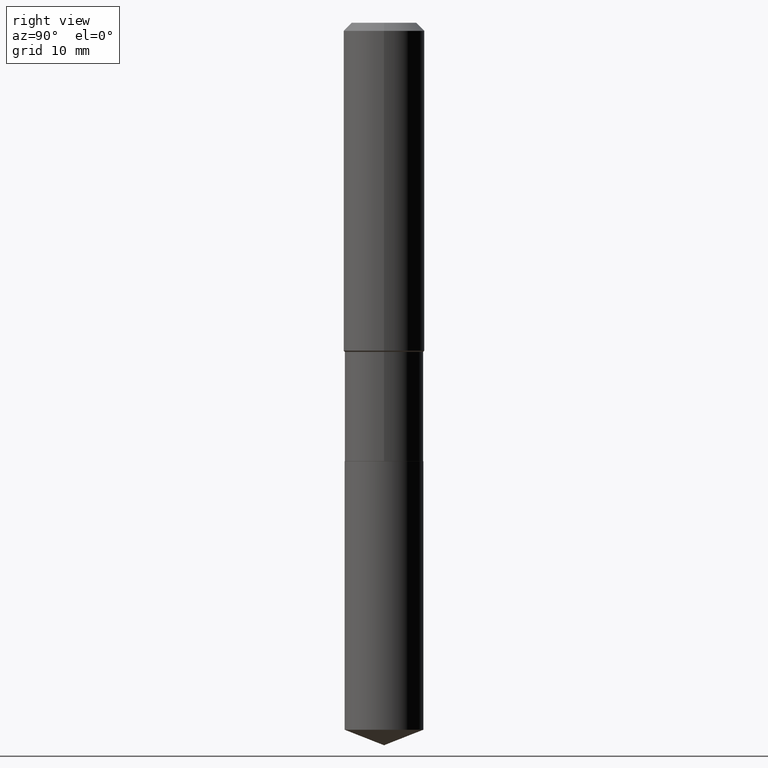
[diagram: clean part render]
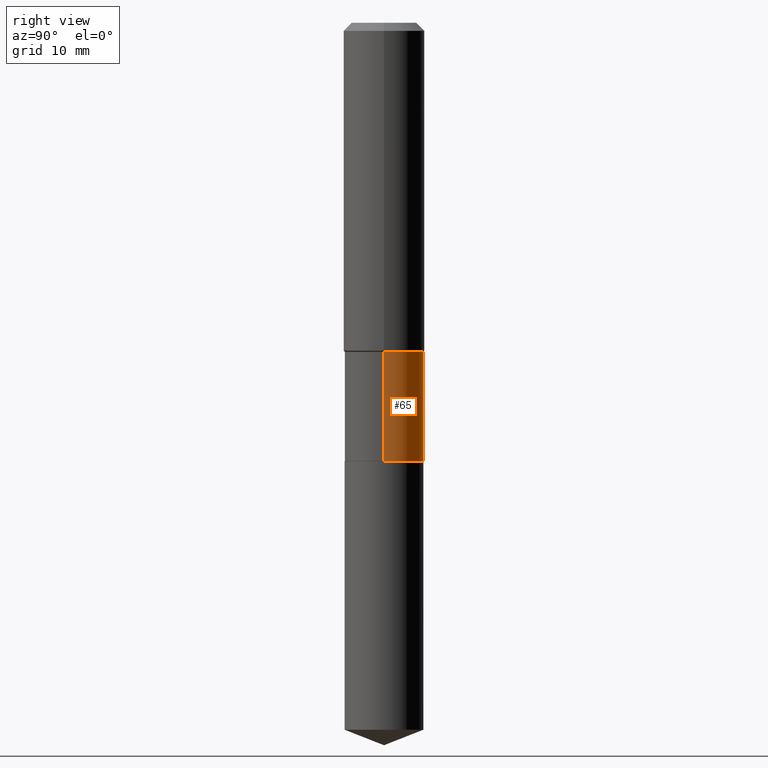
[diagram: same view with one face highlighted and labeled with its STEP entity id]
A machine part, right view. The second image highlights one B-rep face of the part: STEP entity #65.
In plain terms, the highlighted cylindrical surface (partial cylindrical patch) has radius 4.8501 mm, axis along (-0, 0, 1).
Its self-contained STEP definition (entity closure, byte-faithful):
#24 = CIRCLE ( 'NONE', #302, 0.1909499999999999531 ) ;
#36 = VERTEX_POINT ( 'NONE', #163 ) ;
#39 = CIRCLE ( 'NONE', #215, 0.1909500000000000086 ) ;
#42 = CARTESIAN_POINT ( 'NONE',  ( 5.197599400665889285E-29, -7.420794437577220826E-15, -2.125399999999999956 ) ) ;
#47 = EDGE_LOOP ( 'NONE', ( #441, #444, #278, #288 ) ) ;
#65 = ADVANCED_FACE ( 'NONE', ( #331 ), #325, .T. ) ;
#131 = DIRECTION ( 'NONE',  ( -2.445468806185136597E-29, 3.491481338843145583E-15, 1.000000000000000000 ) ) ;
#133 = DIRECTION ( 'NONE',  ( 1.000000000000000000, -6.982962677686266711E-15, 4.876176775795935232E-29 ) ) ;
#143 = CARTESIAN_POINT ( 'NONE',  ( -0.1909499999999999531, -5.140167121385413090E-15, -1.596199999999999841 ) ) ;
#149 = VECTOR ( 'NONE', #371, 39.37007874015748143 ) ;
#153 = DIRECTION ( 'NONE',  ( 1.000000000000000000, -6.982962677686265133E-15, 0.000000000000000000 ) ) ;
#163 = CARTESIAN_POINT ( 'NONE',  ( -0.1909500000000000086, -5.140167121385412301E-15, -2.125399999999999956 ) ) ;
#170 = VERTEX_POINT ( 'NONE', #370 ) ;
#181 = CARTESIAN_POINT ( 'NONE',  ( 0.1909499999999999809, -1.333396723304192546E-15, 9.311059553382337160E-30 ) ) ;
#203 = DIRECTION ( 'NONE',  ( -2.445468806185136597E-29, 3.491481338843145583E-15, 1.000000000000000000 ) ) ;
#213 = VERTEX_POINT ( 'NONE', #226 ) ;
#215 = AXIS2_PLACEMENT_3D ( 'NONE', #42, #425, #153 ) ;
#224 = DIRECTION ( 'NONE',  ( -2.445468806185136877E-29, 3.491481338843145188E-15, 1.000000000000000000 ) ) ;
#226 = CARTESIAN_POINT ( 'NONE',  ( 0.1909500000000000086, -8.754191160881413373E-15, -2.125399999999999956 ) ) ;
#231 = EDGE_CURVE ( 'NONE', #213, #36, #39, .T. ) ;
#246 = EDGE_CURVE ( 'NONE', #170, #465, #24, .T. ) ;
#278 = ORIENTED_EDGE ( 'NONE', *, *, #246, .F. ) ;
#288 = ORIENTED_EDGE ( 'NONE', *, *, #418, .F. ) ;
#300 = CARTESIAN_POINT ( 'NONE',  ( -0.1909499999999999809, 1.356781353933911169E-15, -9.392706554841740811E-30 ) ) ;
#302 = AXIS2_PLACEMENT_3D ( 'NONE', #466, #203, #347 ) ;
#325 = CYLINDRICAL_SURFACE ( 'NONE', #361, 0.1909499999999999809 ) ;
#331 = FACE_OUTER_BOUND ( 'NONE', #47, .T. ) ;
#341 = LINE ( 'NONE', #300, #412 ) ;
#347 = DIRECTION ( 'NONE',  ( 1.000000000000000000, -6.982962677686266711E-15, 0.000000000000000000 ) ) ;
#361 = AXIS2_PLACEMENT_3D ( 'NONE', #474, #131, #133 ) ;
#370 = CARTESIAN_POINT ( 'NONE',  ( 0.1909499999999999531, -6.906499236365620631E-15, -1.596199999999999841 ) ) ;
#371 = DIRECTION ( 'NONE',  ( -2.445468806185136877E-29, 3.491481338843145188E-15, 1.000000000000000000 ) ) ;
#408 = LINE ( 'NONE', #181, #149 ) ;
#412 = VECTOR ( 'NONE', #224, 39.37007874015748143 ) ;
#418 = EDGE_CURVE ( 'NONE', #213, #170, #408, .T. ) ;
#425 = DIRECTION ( 'NONE',  ( -2.445468806185136597E-29, 3.491481338843145583E-15, 1.000000000000000000 ) ) ;
#441 = ORIENTED_EDGE ( 'NONE', *, *, #231, .T. ) ;
#444 = ORIENTED_EDGE ( 'NONE', *, *, #472, .T. ) ;
#465 = VERTEX_POINT ( 'NONE', #143 ) ;
#466 = CARTESIAN_POINT ( 'NONE',  ( 3.903457308432714385E-29, -5.573102513061428085E-15, -1.596199999999999841 ) ) ;
#472 = EDGE_CURVE ( 'NONE', #36, #465, #341, .T. ) ;
#474 = CARTESIAN_POINT ( 'NONE',  ( 0.000000000000000000, 0.000000000000000000, 0.000000000000000000 ) ) ;